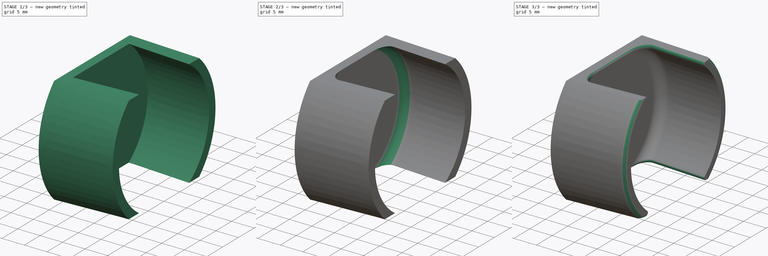
[diagram: build sequence overview — one tinted view per stage of 3, left to right]
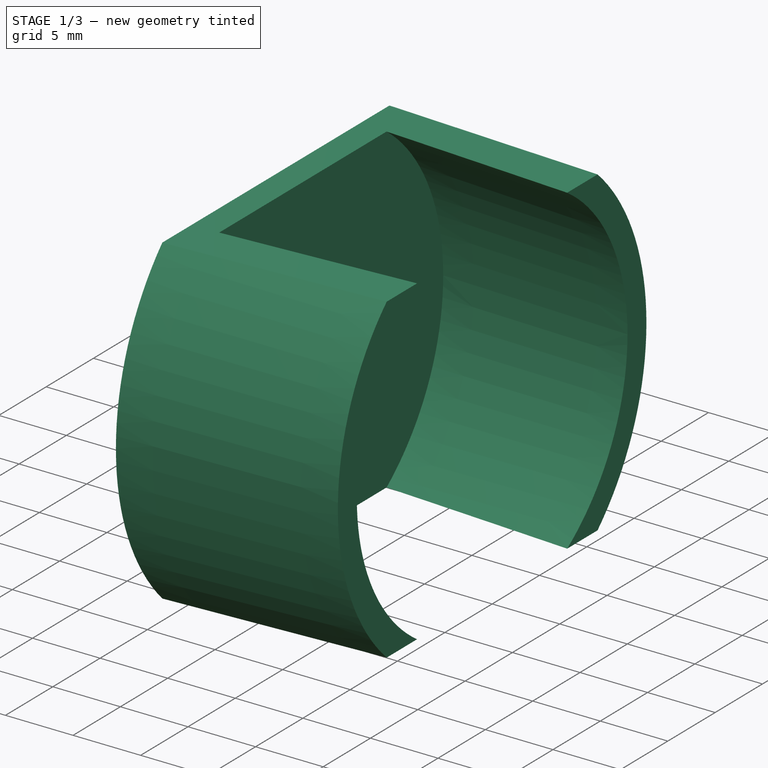
[diagram: stage 1 of 3 — iso view after this stage's code; geometry added in this stage tinted green]
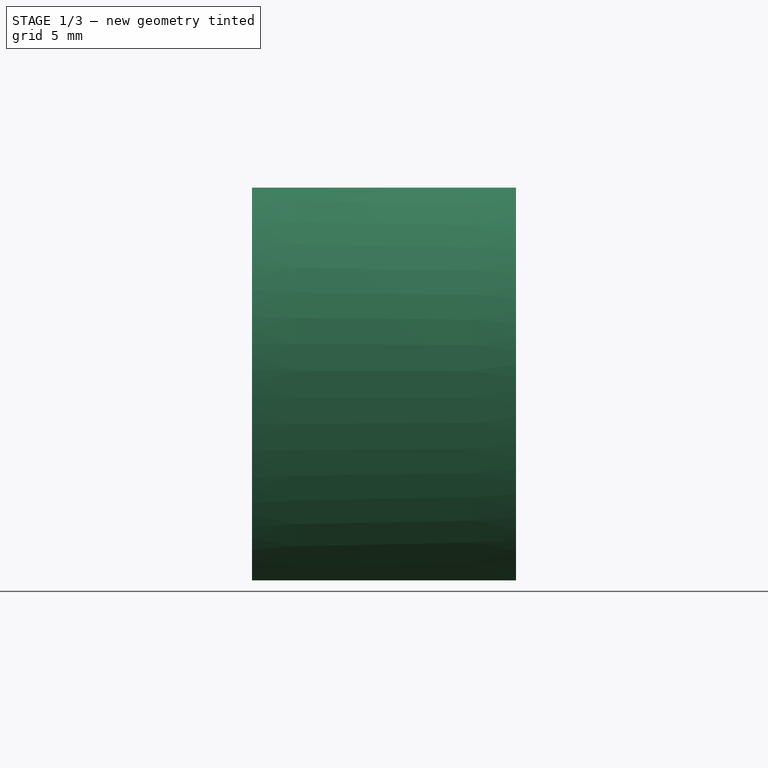
[diagram: stage 1 of 3 — front view after this stage's code; geometry added in this stage tinted green]
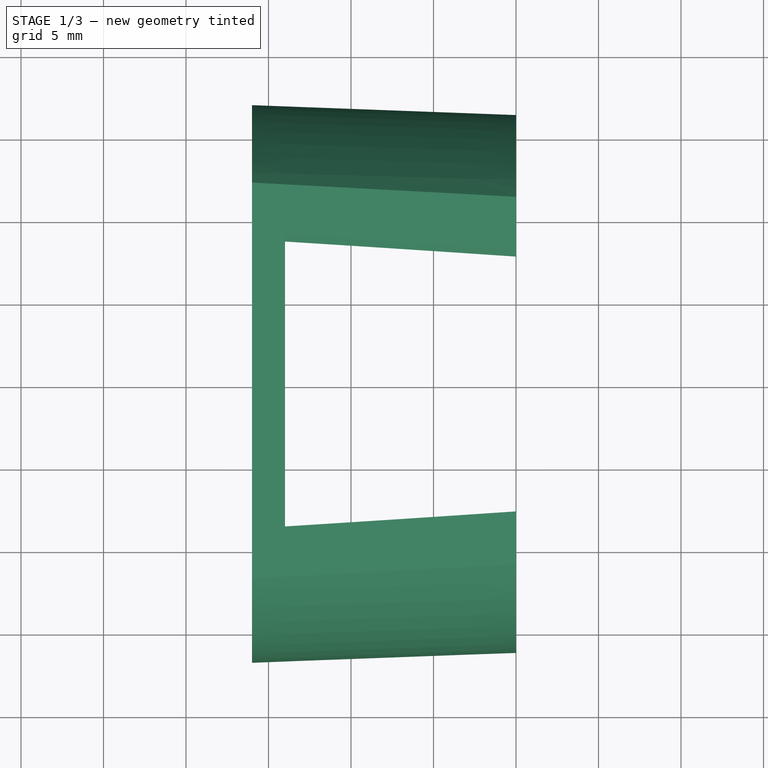
[diagram: stage 1 of 3 — top view after this stage's code; geometry added in this stage tinted green]
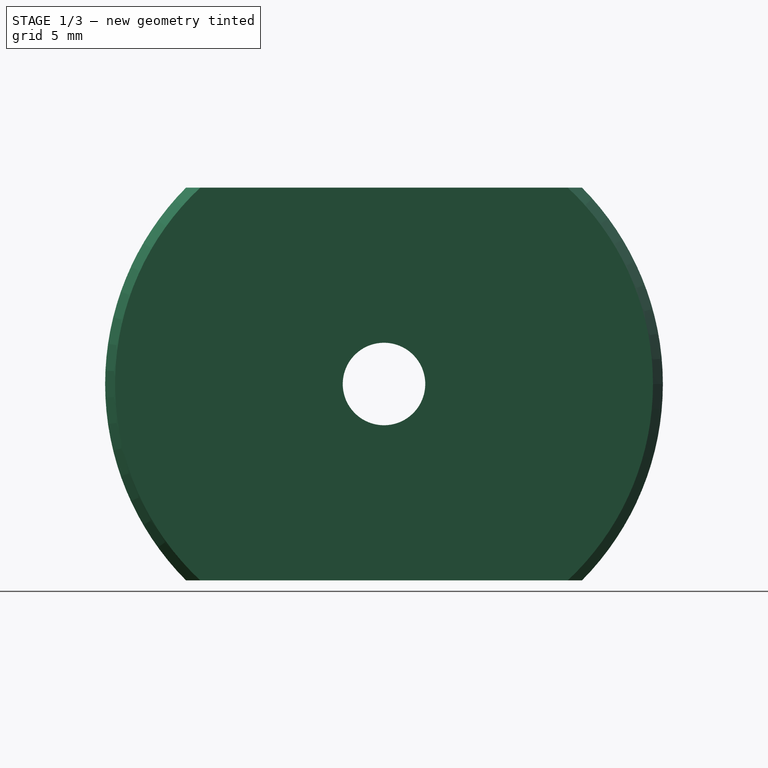
[diagram: stage 1 of 3 — right view after this stage's code; geometry added in this stage tinted green]
FCSTD DOCUMENT  (FreeCAD 0.20R29603 (Git))
Label: cap-roda
License: All rights reserved
LicenseURL: http://en.wikipedia.org/wiki/All_rights_reserved
objects: PartDesign::Fillet×3, Sketcher::SketchObject×2, PartDesign::Line×1, PartDesign::Revolution×1, PartDesign::Pocket×1, PartDesign::Body×1
note: 14 computed .brp shape members not serialized (recipe doc carries the construction recipe); baked Part::Feature solids carry a one-line shape summary decoded from their .brp

FEATURE [Sketcher::SketchObject] Sketch
  FullyConstrained = true
  MapMode = 5
  Support = -> [XY_Plane]
  sketch-geometry (15):
    g0: LineSegment StartX=-1 StartY=16.9 StartZ=0 EndX=-1 EndY=-16.9 EndZ=0
    g1: LineSegment StartX=-1 StartY=-16.9 StartZ=0 EndX=15 EndY=-16.3 EndZ=0
    g2: LineSegment StartX=15 StartY=-16.3 StartZ=0 EndX=15 EndY=-14.3 EndZ=0
    g3: LineSegment StartX=15 StartY=-14.3 StartZ=0 EndX=1 EndY=-14.825 EndZ=0
    g4: LineSegment StartX=1 StartY=-14.825 StartZ=0 EndX=1 EndY=14.825 EndZ=0
    g5: LineSegment StartX=1 StartY=14.825 StartZ=0 EndX=15 EndY=14.3 EndZ=0
    g6: LineSegment StartX=15 StartY=14.3 StartZ=0 EndX=15 EndY=16.3 EndZ=0
    g7: LineSegment StartX=15 StartY=16.3 StartZ=0 EndX=-1 EndY=16.9 EndZ=0
    g8: LineSegment StartX=1 StartY=0 StartZ=0 EndX=-1 EndY=0 EndZ=0
    g9: LineSegment StartX=1 StartY=0 StartZ=0 EndX=-1 EndY=0 EndZ=0
    g10: LineSegment StartX=-1 StartY=0 StartZ=0 EndX=-1 EndY=16.9 EndZ=0
    g11: LineSegment StartX=-1 StartY=16.9 StartZ=0 EndX=15 EndY=16.3 EndZ=0
    g12: LineSegment StartX=15 StartY=16.3 StartZ=0 EndX=15 EndY=14.3 EndZ=0
    g13: LineSegment StartX=15 StartY=14.3 StartZ=0 EndX=1 EndY=14.825 EndZ=0
    g14: LineSegment StartX=1 StartY=14.825 StartZ=0 EndX=1 EndY=0 EndZ=0
  constraints (38):
    c: Vertical(g0)
    c: Coincident(g0,g1)
    c: Coincident(g1,g2)
    c: Vertical(g2)
    c: Coincident(g2,g3)
    c: Coincident(g3,g4)
    c: Coincident(g4,g5)
    c: Coincident(g5,g6)
    c: Vertical(g6)
    c: Coincident(g6,g7)
    c: Coincident(g0,g7)
    c: Equal(g7,g1)
    c: Equal(g3,g5)
    c: PointOnObject(g8,g0)
    c: PointOnObject(g8,g4)
    c: Symmetric(g8,g8,g-2)
    c: PointOnObject(g-1,g8)
    c: DistanceX(g8,g8) = 2
    c: Symmetric(g4,g3,g-1)
    c: Equal(g2,g6)
    c: Equal(g6,g8)
    c: Parallel(g5,g7)
    c: Parallel(g3,g1)
    c: DistanceY(g0,g0) = 33.8
    c: DistanceY(g1,g6) = 32.6
    c: DistanceX(g0,g6) = 16
    c: Coincident(g9,g10)
    c: Coincident(g10,g11)
    c: Coincident(g11,g12)
    c: Coincident(g12,g13)
    c: Coincident(g13,g14)
    c: Coincident(g14,g9)
    c: Coincident(g9,g8)
    c: Coincident(g9,g8)
    c: Coincident(g10,g0)
    c: Coincident(g13,g4)
    c: Coincident(g12,g5)
    c: Coincident(g11,g6)
FEATURE [PartDesign::Line] DatumLine
  AttacherType = Attacher::AttachEngineLine
  Length = 20
  MapMode = 16
  Placement = pos=(0,0,0) rot=(0.57735,0.57735,0.57735;2.0944rad)
  ResizeMode = 0
  Support = -> [Sketch]
FEATURE [PartDesign::Revolution] Revolution
  Angle = 360
  Axis = (1,0,0)
  Base = (0,0,0)
  Profile = -> Sketch
  ReferenceAxis = -> Sketch [H_Axis]
FEATURE [Sketcher::SketchObject] Sketch001
  ExternalGeometry = -> [Revolution]
  FullyConstrained = true
  MapMode = 5
  Placement = pos=(-1,0,0) rot=(0.57735,-0.57735,-0.57735;2.0944rad)
  Support = -> [Revolution]
  sketch-geometry (9):
    g0: Circle CenterX=0 CenterY=0 CenterZ=0 NormalX=0 NormalY=0 NormalZ=1 AngleXU=0 Radius=2.5
    g1: LineSegment StartX=-12 StartY=16.9 StartZ=0 EndX=12 EndY=16.9 EndZ=0
    g2: LineSegment StartX=12 StartY=16.9 StartZ=0 EndX=12 EndY=11.9 EndZ=0
    g3: LineSegment StartX=12 StartY=11.9 StartZ=0 EndX=-12 EndY=11.9 EndZ=0
    g4: LineSegment StartX=-12 StartY=11.9 StartZ=0 EndX=-12 EndY=16.9 EndZ=0
    g5: LineSegment StartX=-12 StartY=-11.9 StartZ=0 EndX=12 EndY=-11.9 EndZ=0
    g6: LineSegment StartX=12 StartY=-11.9 StartZ=0 EndX=12 EndY=-16.9 EndZ=0
    g7: LineSegment StartX=12 StartY=-16.9 StartZ=0 EndX=-12 EndY=-16.9 EndZ=0
    g8: LineSegment StartX=-12 StartY=-16.9 StartZ=0 EndX=-12 EndY=-11.9 EndZ=0
  constraints (25):
    c: Coincident(g0,g-1)
    c: Coincident(g1,g2)
    c: Coincident(g2,g3)
    c: Coincident(g3,g4)
    c: Coincident(g4,g1)
    c: Horizontal(g3)
    c: Vertical(g2)
    c: Vertical(g4)
    c: Diameter(g0) = 5
    c: PointOnObject(g3,g-3)
    c: Symmetric(g1,g1,g-2)
    c: DistanceY(g2,g2) = 5
    c: Tangent(g-3,g1)
    c: Coincident(g5,g6)
    c: Coincident(g6,g7)
    c: Coincident(g7,g8)
    c: Coincident(g8,g5)
    c: Horizontal(g5)
    c: Horizontal(g7)
    c: Vertical(g6)
    c: Vertical(g8)
    c: PointOnObject(g5,g-3)
    c: Vertical(g5,g3)
    c: Equal(g8,g4)
    c: Tangent(g7,g-3)
FEATURE [PartDesign::Pocket] Pocket
  BaseFeature = -> Revolution
  Direction = (1,0,0)
  Length = 5
  Length2 = 5
  Profile = -> Sketch001
  ReferenceAxis = -> Sketch001 [N_Axis]
  Type = 1
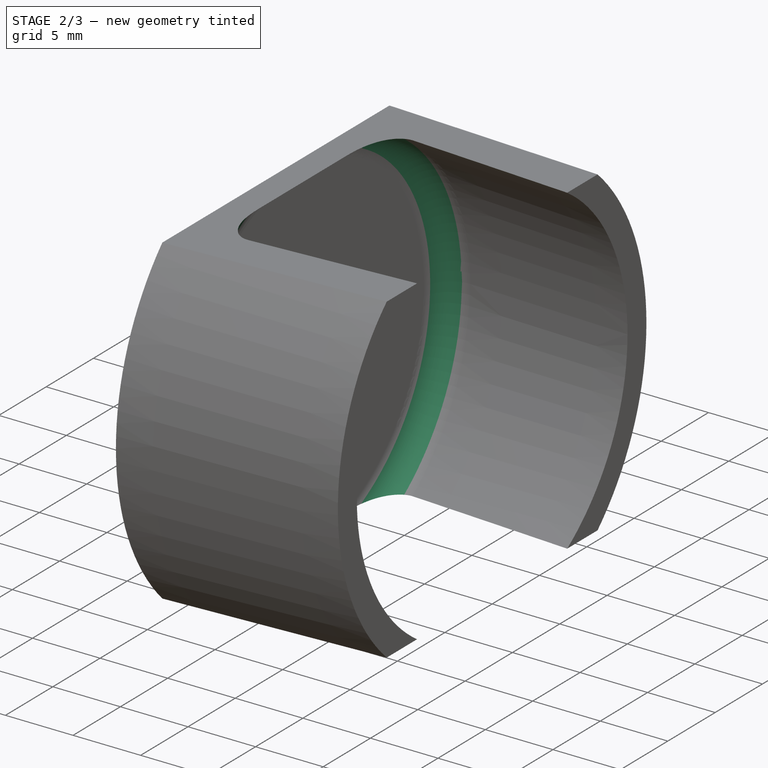
[diagram: stage 2 of 3 — iso view after this stage's code; geometry added in this stage tinted green]
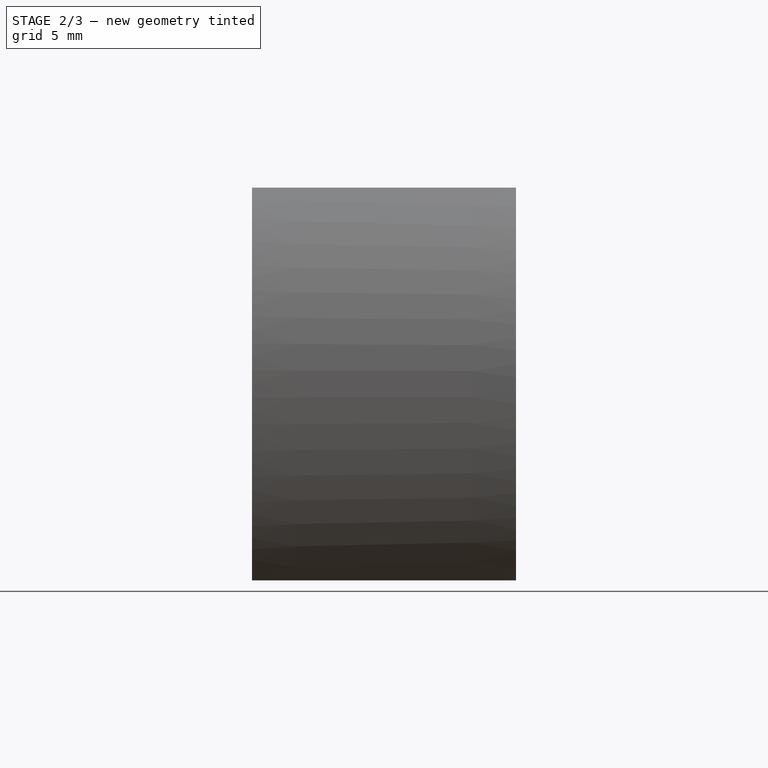
[diagram: stage 2 of 3 — front view after this stage's code; geometry added in this stage tinted green]
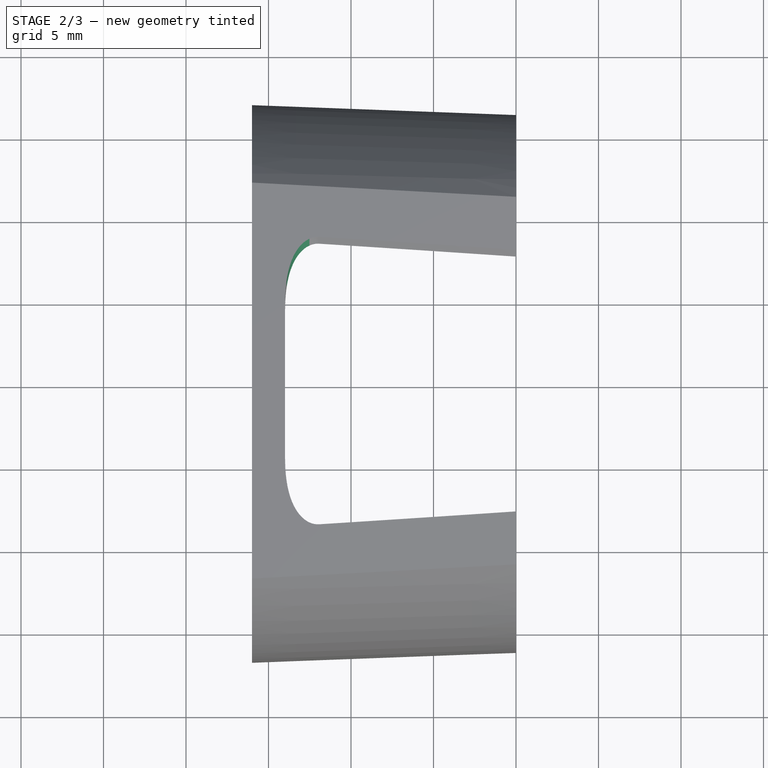
[diagram: stage 2 of 3 — top view after this stage's code; geometry added in this stage tinted green]
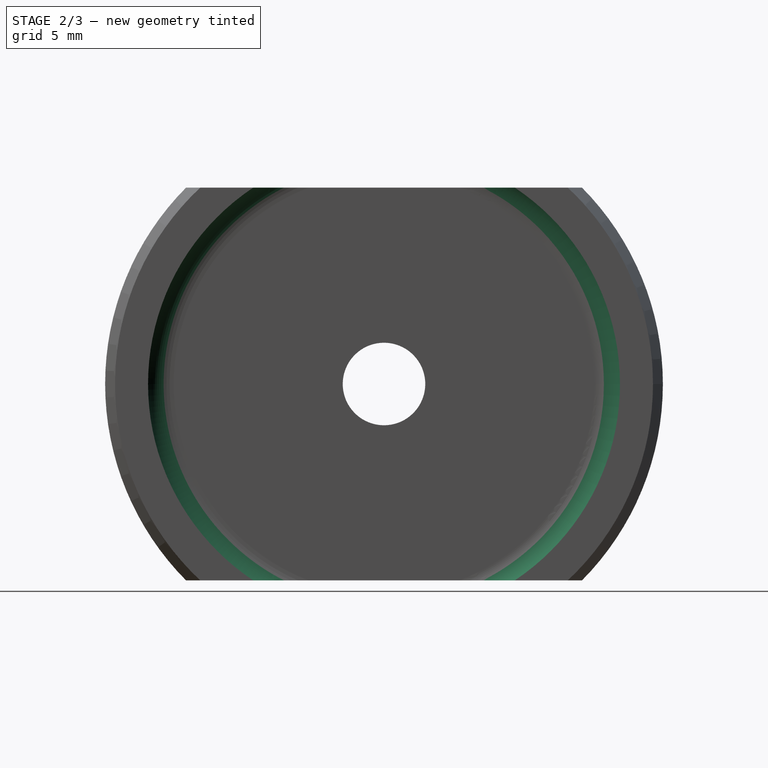
[diagram: stage 2 of 3 — right view after this stage's code; geometry added in this stage tinted green]
FEATURE [PartDesign::Fillet] Fillet
  Base = -> Pocket [Edge31,Edge30,Edge32]
  BaseFeature = -> Pocket
  Radius = 2
  SupportTransform = false
  UseAllEdges = false
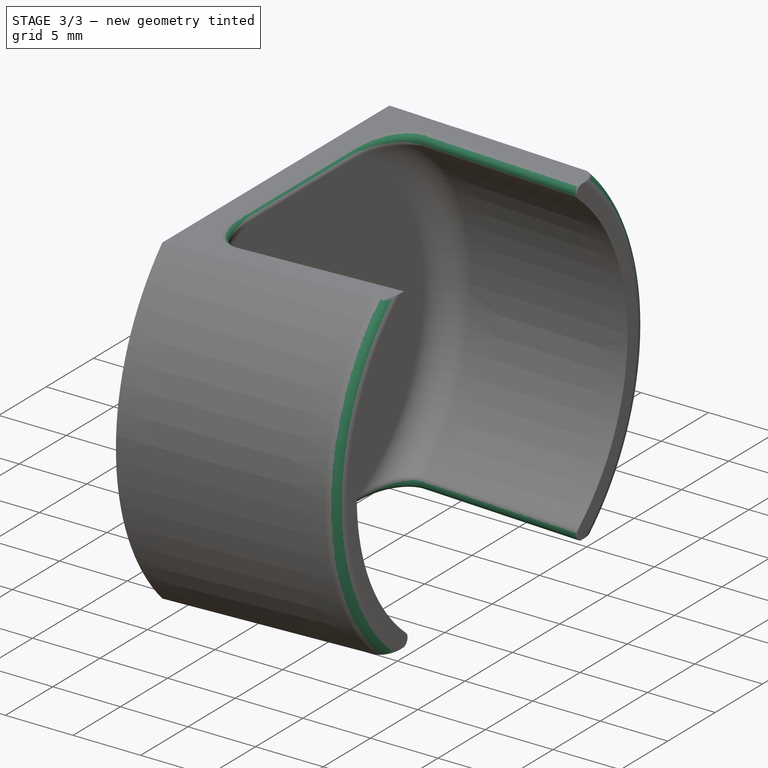
[diagram: stage 3 of 3 — iso view after this stage's code; geometry added in this stage tinted green]
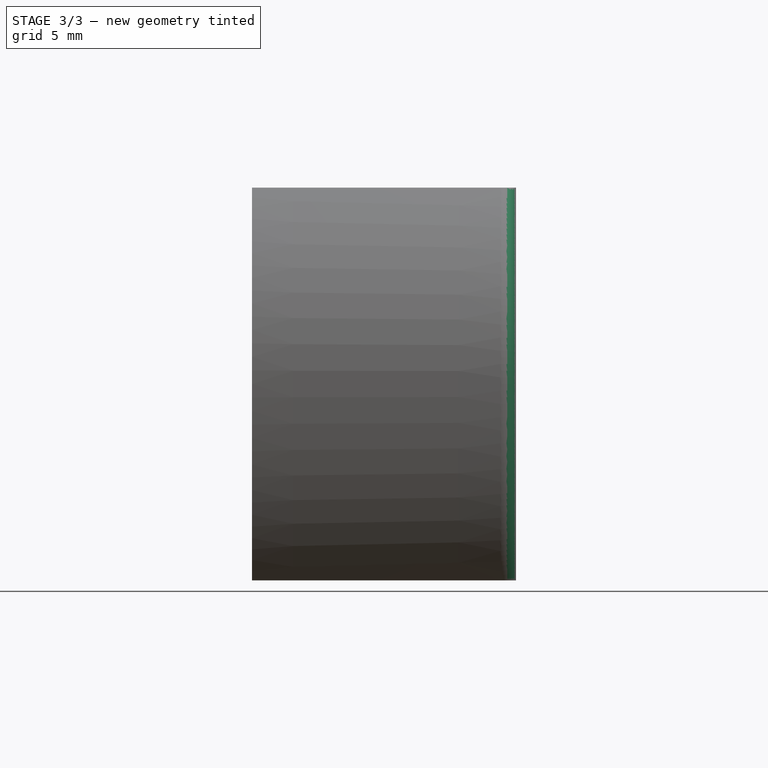
[diagram: stage 3 of 3 — front view after this stage's code; geometry added in this stage tinted green]
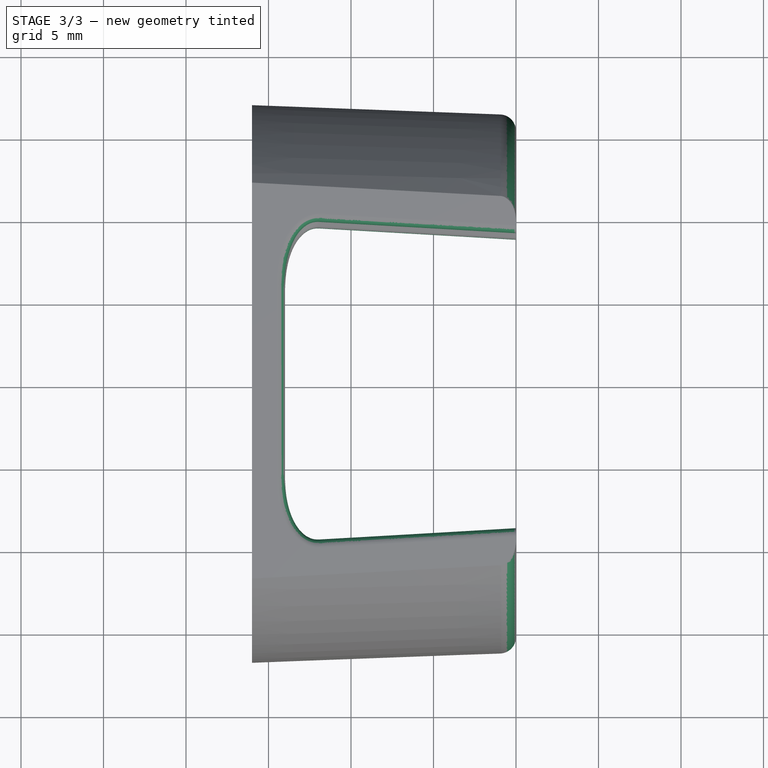
[diagram: stage 3 of 3 — top view after this stage's code; geometry added in this stage tinted green]
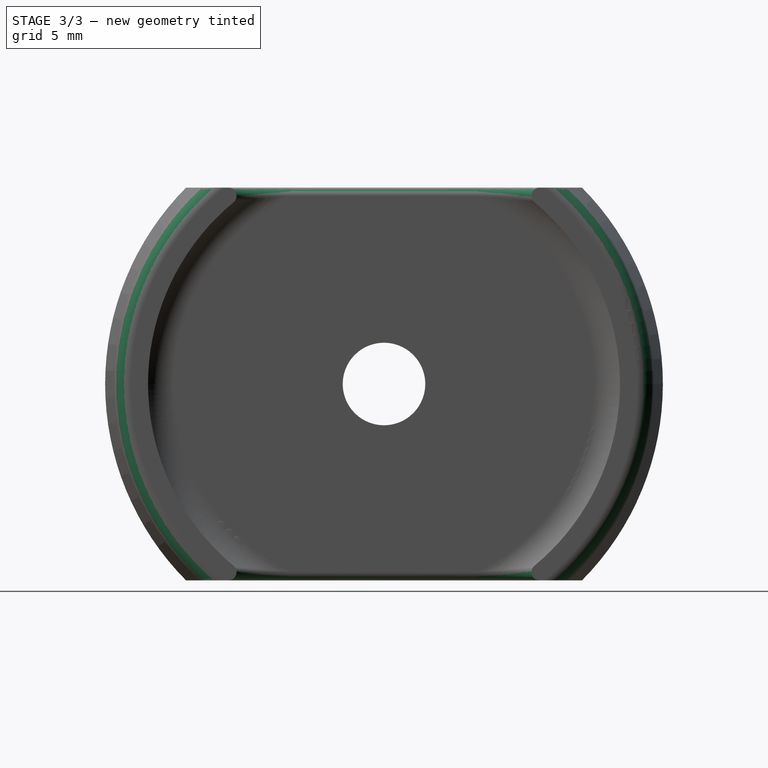
[diagram: stage 3 of 3 — right view after this stage's code; geometry added in this stage tinted green]
FEATURE [PartDesign::Fillet] Fillet001
  Base = -> Fillet [Edge1,Edge8,Edge33,Edge37]
  BaseFeature = -> Fillet
  Radius = 0.5
  SupportTransform = false
  UseAllEdges = false
FEATURE [PartDesign::Fillet] Fillet002
  Base = -> Fillet001 [Edge30,Edge15,Edge13]
  BaseFeature = -> Fillet001
  Radius = 1
  SupportTransform = false
  UseAllEdges = false
FEATURE [PartDesign::Body] Body
  Group = -> [Sketch,DatumLine,Revolution,Sketch001,Pocket,Fillet,Fillet001,Fillet002]
  Origin = -> Origin
  Tip = -> Fillet002
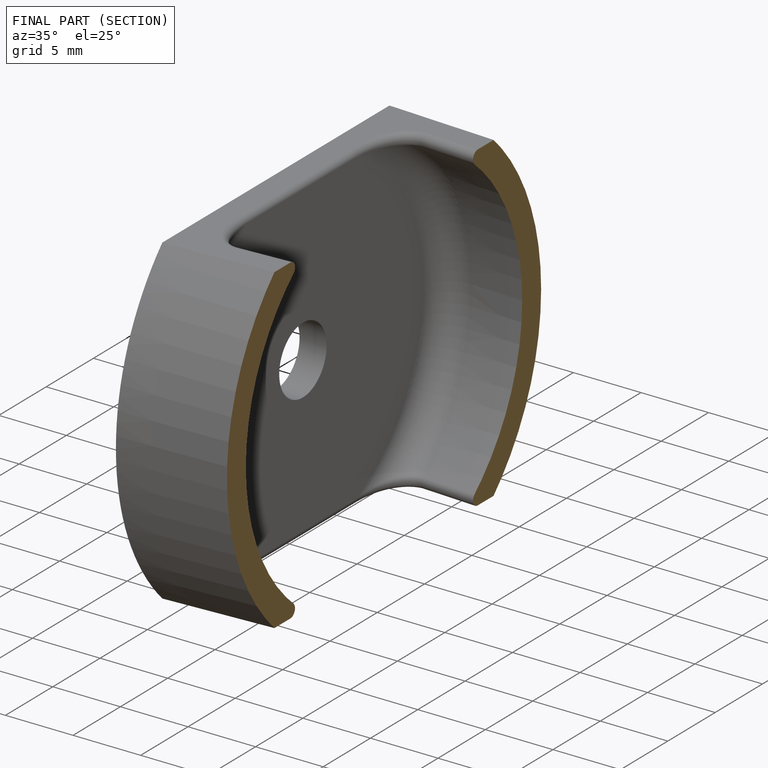
[diagram: finished part — half-section view (interior)]
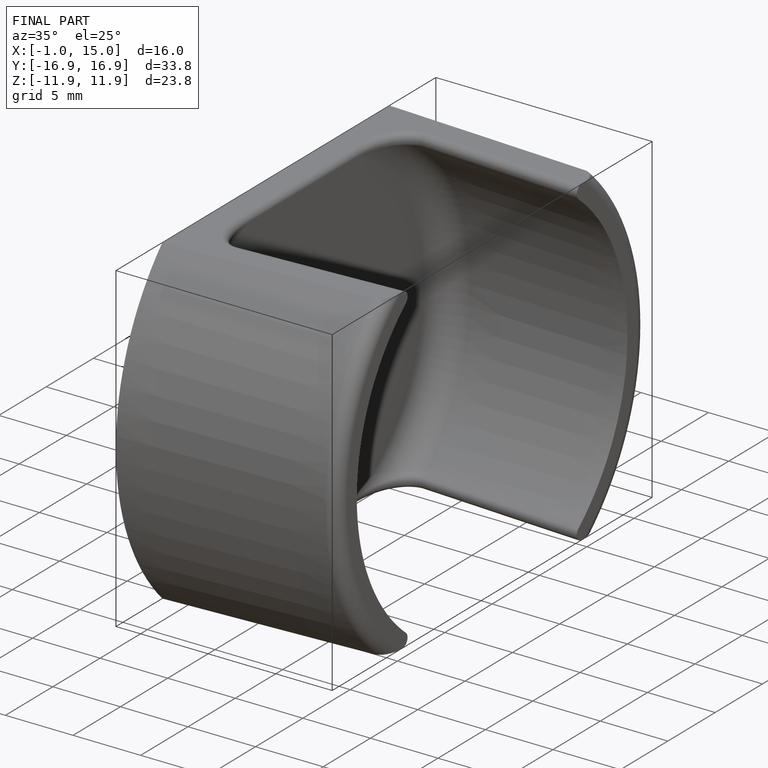
[diagram: finished part — iso view with bounding-box wireframe]
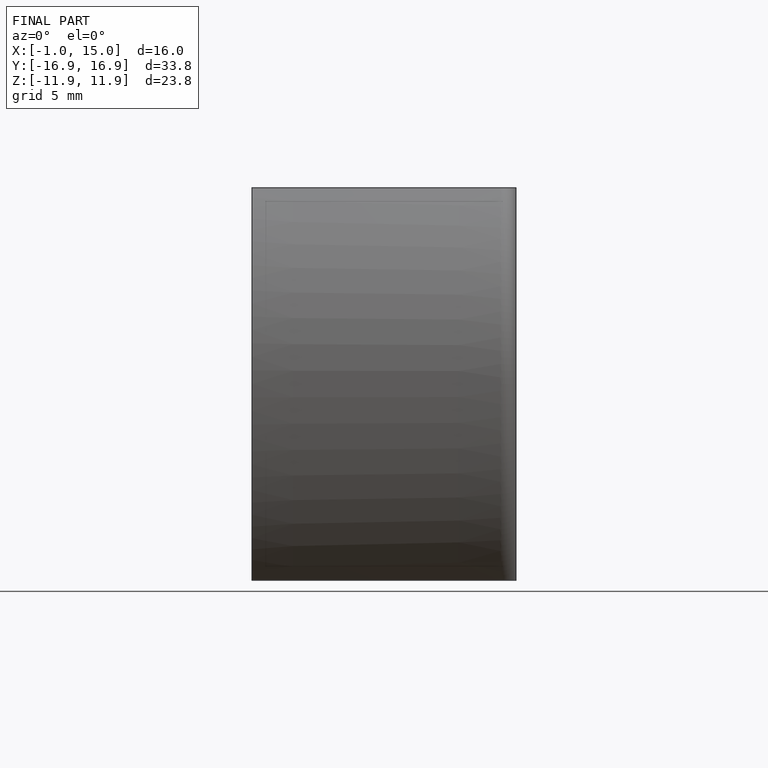
[diagram: finished part — front view with bounding-box wireframe]
